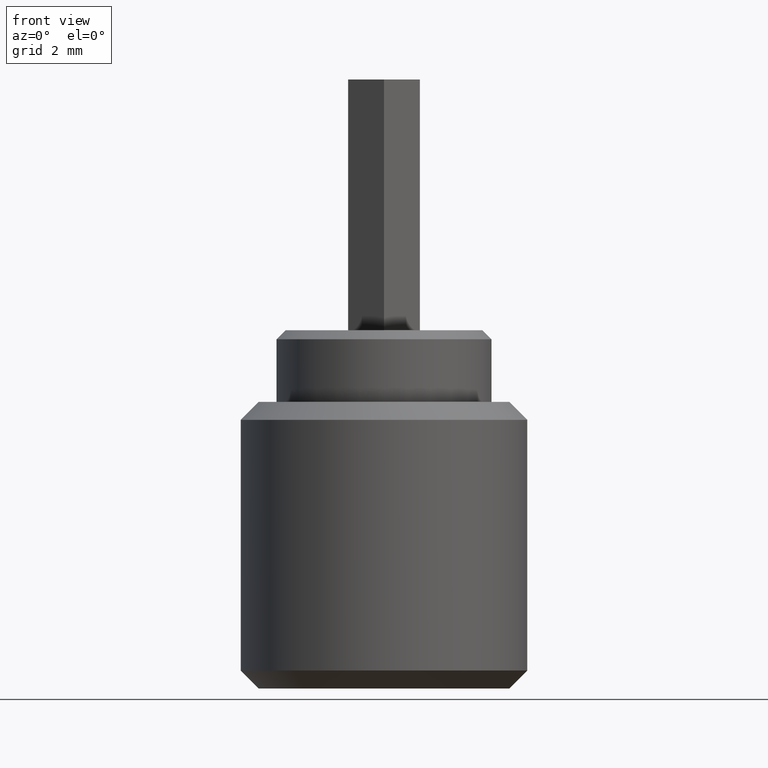
[diagram: clean part render]
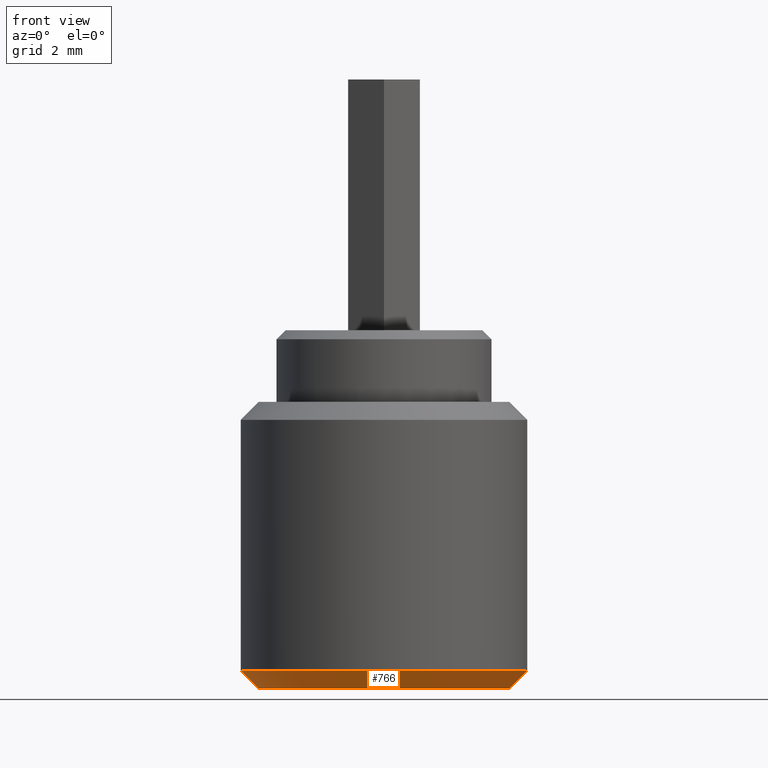
[diagram: same view with one face highlighted and labeled with its STEP entity id]
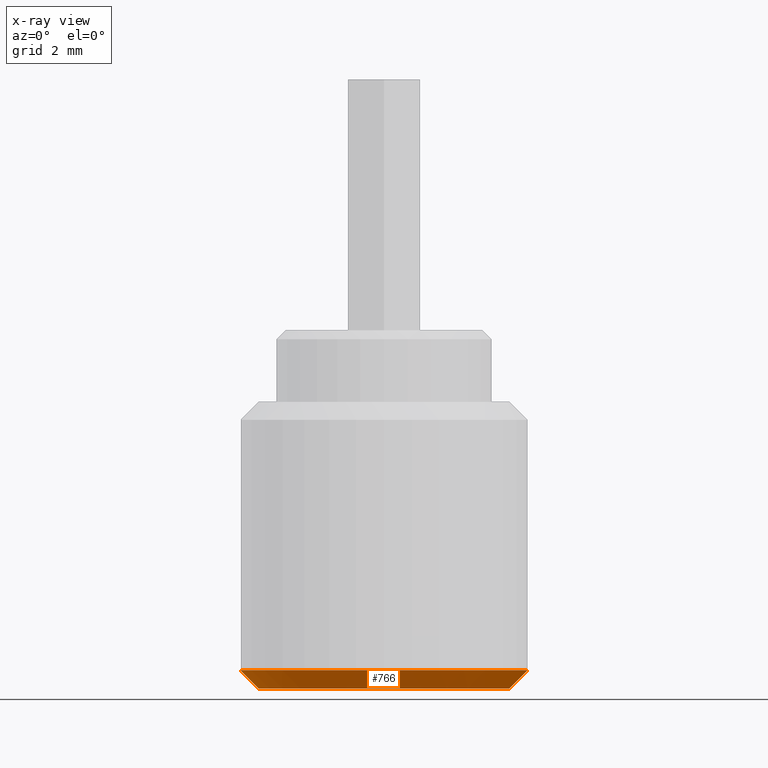
[diagram: x-ray of the same camera — body ghosted, the highlighted face saturated]
A machine part, front view. The second image highlights one B-rep face of the part: STEP entity #766.
The next image is the same camera in x-ray: the body ghosted, the highlighted face saturated — about 0% of this face is hidden behind the body in this view.
In plain terms, the highlighted conical surface has half-angle 45 deg.
Its self-contained STEP definition (entity closure, byte-faithful):
#17 = CARTESIAN_POINT ( 'NONE',  ( -4.000000000000000000, 0.000000000000000000, 0.5000000000000022204 ) ) ;
#64 = CARTESIAN_POINT ( 'NONE',  ( -4.000000000000000000, 4.898587196589412829E-16, 0.5000000000000022204 ) ) ;
#96 = ORIENTED_EDGE ( 'NONE', *, *, #811, .F. ) ;
#100 = DIRECTION ( 'NONE',  ( 0.7071067811865487940, 0.000000000000000000, 0.7071067811865463515 ) ) ;
#131 = AXIS2_PLACEMENT_3D ( 'NONE', #613, #975, #829 ) ;
#132 = DIRECTION ( 'NONE',  ( 1.000000000000000000, 0.000000000000000000, 0.000000000000000000 ) ) ;
#209 = CARTESIAN_POINT ( 'NONE',  ( 0.000000000000000000, 0.000000000000000000, 0.000000000000000000 ) ) ;
#226 = CONICAL_SURFACE ( 'NONE', #448, 4.000000000000000000, 0.7853981633974500554 ) ;
#257 = AXIS2_PLACEMENT_3D ( 'NONE', #209, #759, #132 ) ;
#268 = DIRECTION ( 'NONE',  ( -0.000000000000000000, -0.000000000000000000, 1.000000000000000000 ) ) ;
#323 = CIRCLE ( 'NONE', #257, 3.499999999999996003 ) ;
#420 = EDGE_LOOP ( 'NONE', ( #96, #706, #808, #502 ) ) ;
#426 = EDGE_CURVE ( 'NONE', #757, #958, #785, .T. ) ;
#448 = AXIS2_PLACEMENT_3D ( 'NONE', #649, #268, #887 ) ;
#455 = DIRECTION ( 'NONE',  ( -0.7071067811865487940, 8.659560562354948882E-17, 0.7071067811865463515 ) ) ;
#499 = CARTESIAN_POINT ( 'NONE',  ( 3.499999999999996003, 0.000000000000000000, 0.000000000000000000 ) ) ;
#502 = ORIENTED_EDGE ( 'NONE', *, *, #904, .F. ) ;
#541 = VERTEX_POINT ( 'NONE', #929 ) ;
#572 = FACE_OUTER_BOUND ( 'NONE', #420, .T. ) ;
#600 = VERTEX_POINT ( 'NONE', #17 ) ;
#613 = CARTESIAN_POINT ( 'NONE',  ( 0.000000000000000000, 0.000000000000000000, 0.5000000000000022204 ) ) ;
#635 = CARTESIAN_POINT ( 'NONE',  ( 4.000000000000000000, 0.000000000000000000, 0.5000000000000022204 ) ) ;
#649 = CARTESIAN_POINT ( 'NONE',  ( 0.000000000000000000, 0.000000000000000000, 0.5000000000000022204 ) ) ;
#653 = VECTOR ( 'NONE', #100, 1000.000000000000000 ) ;
#655 = LINE ( 'NONE', #64, #914 ) ;
#706 = ORIENTED_EDGE ( 'NONE', *, *, #918, .F. ) ;
#757 = VERTEX_POINT ( 'NONE', #499 ) ;
#759 = DIRECTION ( 'NONE',  ( -0.000000000000000000, -0.000000000000000000, -1.000000000000000000 ) ) ;
#766 = ADVANCED_FACE ( 'NONE', ( #572 ), #226, .T. ) ;
#785 = LINE ( 'NONE', #635, #653 ) ;
#808 = ORIENTED_EDGE ( 'NONE', *, *, #426, .T. ) ;
#811 = EDGE_CURVE ( 'NONE', #541, #600, #655, .T. ) ;
#829 = DIRECTION ( 'NONE',  ( 1.000000000000000000, 0.000000000000000000, 0.000000000000000000 ) ) ;
#882 = CIRCLE ( 'NONE', #131, 4.000000000000000000 ) ;
#887 = DIRECTION ( 'NONE',  ( 1.000000000000000000, 0.000000000000000000, 0.000000000000000000 ) ) ;
#904 = EDGE_CURVE ( 'NONE', #600, #958, #882, .T. ) ;
#906 = CARTESIAN_POINT ( 'NONE',  ( 4.000000000000000000, 4.898587196589412829E-16, 0.5000000000000022204 ) ) ;
#914 = VECTOR ( 'NONE', #455, 1000.000000000000000 ) ;
#918 = EDGE_CURVE ( 'NONE', #757, #541, #323, .T. ) ;
#929 = CARTESIAN_POINT ( 'NONE',  ( -3.499999999999996003, 4.592425496802572000E-16, 0.000000000000000000 ) ) ;
#958 = VERTEX_POINT ( 'NONE', #906 ) ;
#975 = DIRECTION ( 'NONE',  ( -0.000000000000000000, -0.000000000000000000, 1.000000000000000000 ) ) ;